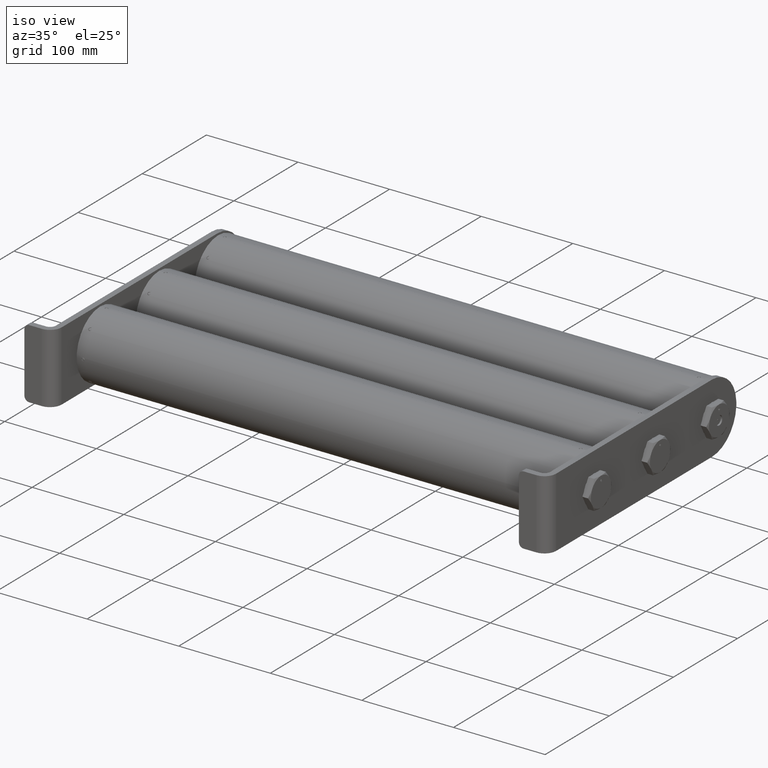
[diagram: clean part render]
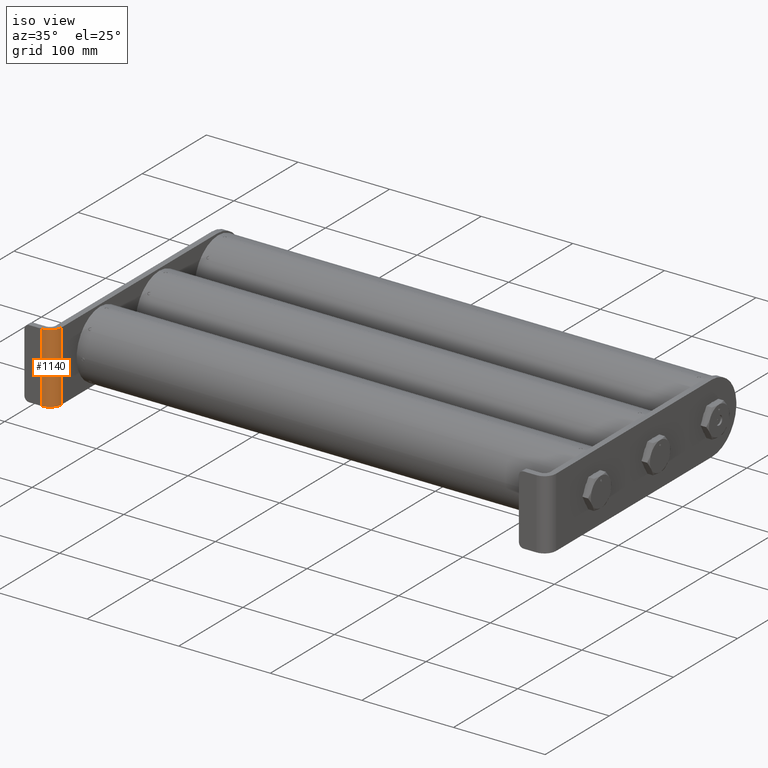
[diagram: same view with one face highlighted and labeled with its STEP entity id]
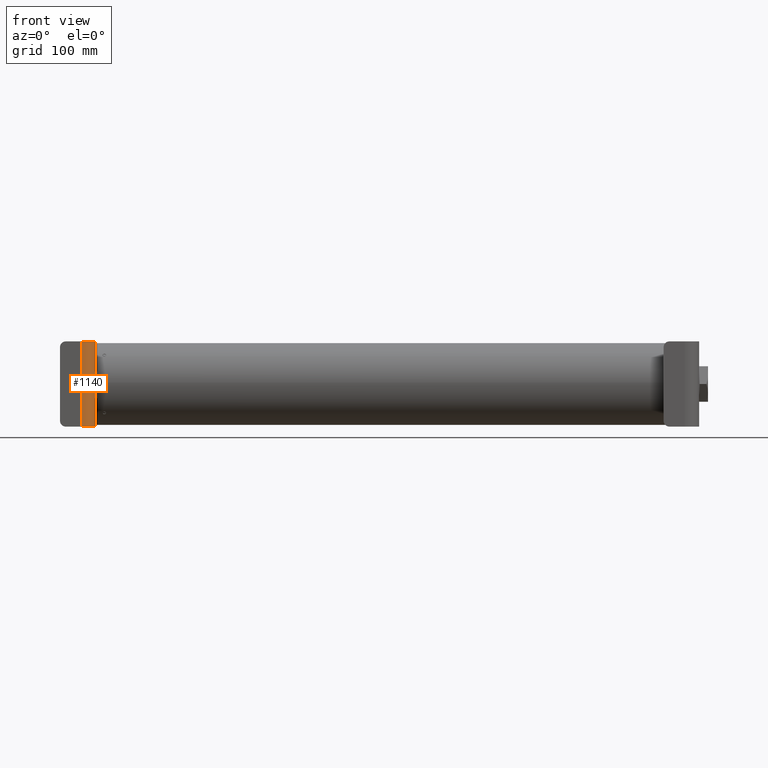
[diagram: same view with one face highlighted and labeled with its STEP entity id]
A machine part, iso view. The second image highlights one B-rep face of the part: STEP entity #1140.
A second angle (front view) of the same face is appended — the face is thin or edge-on in the first view.
In plain terms, the highlighted cylindrical surface (edge-blend (fillet) strip) has radius 12.7 mm, axis along (0, 0, -1).
Its self-contained STEP definition (entity closure, byte-faithful):
#57 = CIRCLE ( 'NONE', #9503, 0.5000000000000006661 ) ;
#451 = LINE ( 'NONE', #18288, #16926 ) ;
#1140 = ADVANCED_FACE ( 'NONE', ( #17201 ), #14015, .T. ) ;
#1759 = DIRECTION ( 'NONE',  ( 0.000000000000000000, 0.000000000000000000, 1.000000000000000000 ) ) ;
#2279 = AXIS2_PLACEMENT_3D ( 'NONE', #17781, #1759, #12984 ) ;
#2676 = AXIS2_PLACEMENT_3D ( 'NONE', #2678, #20477, #15704 ) ;
#2678 = CARTESIAN_POINT ( 'NONE',  ( -5.530000000000000249, 0.2499999999999993616, 1.500000000000000222 ) ) ;
#3788 = CARTESIAN_POINT ( 'NONE',  ( -6.030000000000001137, 0.2499999999999993616, 1.500000000000000222 ) ) ;
#3931 = VECTOR ( 'NONE', #16816, 39.37007874015748143 ) ;
#5073 = ORIENTED_EDGE ( 'NONE', *, *, #7050, .F. ) ;
#5563 = DIRECTION ( 'NONE',  ( 0.000000000000000000, 0.000000000000000000, 1.000000000000000000 ) ) ;
#6887 = DIRECTION ( 'NONE',  ( -0.000000000000000000, -0.000000000000000000, -1.000000000000000000 ) ) ;
#7050 = EDGE_CURVE ( 'NONE', #9455, #13777, #57, .T. ) ;
#8970 = CARTESIAN_POINT ( 'NONE',  ( -5.530000000000000249, 0.2499999999999993616, 1.500000000000000222 ) ) ;
#9455 = VERTEX_POINT ( 'NONE', #19936 ) ;
#9503 = AXIS2_PLACEMENT_3D ( 'NONE', #8970, #5563, #10654 ) ;
#9904 = EDGE_CURVE ( 'NONE', #9455, #20172, #13326, .T. ) ;
#10654 = DIRECTION ( 'NONE',  ( -1.000000000000000000, 0.000000000000000000, 0.000000000000000000 ) ) ;
#10875 = CARTESIAN_POINT ( 'NONE',  ( -6.030000000000001137, 0.2499999999999993616, -1.500000000000000222 ) ) ;
#12984 = DIRECTION ( 'NONE',  ( -1.000000000000000000, 0.000000000000000000, 0.000000000000000000 ) ) ;
#13326 = LINE ( 'NONE', #3788, #3931 ) ;
#13777 = VERTEX_POINT ( 'NONE', #15427 ) ;
#13932 = CARTESIAN_POINT ( 'NONE',  ( -5.530000000000000249, -0.2500000000000013323, -1.500000000000000222 ) ) ;
#14015 = CYLINDRICAL_SURFACE ( 'NONE', #2676, 0.5000000000000006661 ) ;
#14372 = EDGE_LOOP ( 'NONE', ( #19482, #16803, #5073, #15227 ) ) ;
#15227 = ORIENTED_EDGE ( 'NONE', *, *, #9904, .T. ) ;
#15238 = EDGE_CURVE ( 'NONE', #13777, #16287, #451, .T. ) ;
#15427 = CARTESIAN_POINT ( 'NONE',  ( -5.530000000000000249, -0.2500000000000013323, 1.500000000000000222 ) ) ;
#15704 = DIRECTION ( 'NONE',  ( -1.000000000000000000, 0.000000000000000000, 0.000000000000000000 ) ) ;
#16287 = VERTEX_POINT ( 'NONE', #13932 ) ;
#16803 = ORIENTED_EDGE ( 'NONE', *, *, #15238, .F. ) ;
#16816 = DIRECTION ( 'NONE',  ( -0.000000000000000000, -0.000000000000000000, -1.000000000000000000 ) ) ;
#16926 = VECTOR ( 'NONE', #6887, 39.37007874015748143 ) ;
#17201 = FACE_OUTER_BOUND ( 'NONE', #14372, .T. ) ;
#17516 = CIRCLE ( 'NONE', #2279, 0.5000000000000006661 ) ;
#17781 = CARTESIAN_POINT ( 'NONE',  ( -5.530000000000000249, 0.2499999999999993616, -1.500000000000000222 ) ) ;
#18288 = CARTESIAN_POINT ( 'NONE',  ( -5.530000000000000249, -0.2500000000000013323, 1.500000000000000222 ) ) ;
#18884 = EDGE_CURVE ( 'NONE', #20172, #16287, #17516, .T. ) ;
#19482 = ORIENTED_EDGE ( 'NONE', *, *, #18884, .T. ) ;
#19936 = CARTESIAN_POINT ( 'NONE',  ( -6.030000000000001137, 0.2499999999999993616, 1.500000000000000222 ) ) ;
#20172 = VERTEX_POINT ( 'NONE', #10875 ) ;
#20477 = DIRECTION ( 'NONE',  ( -0.000000000000000000, -0.000000000000000000, -1.000000000000000000 ) ) ;